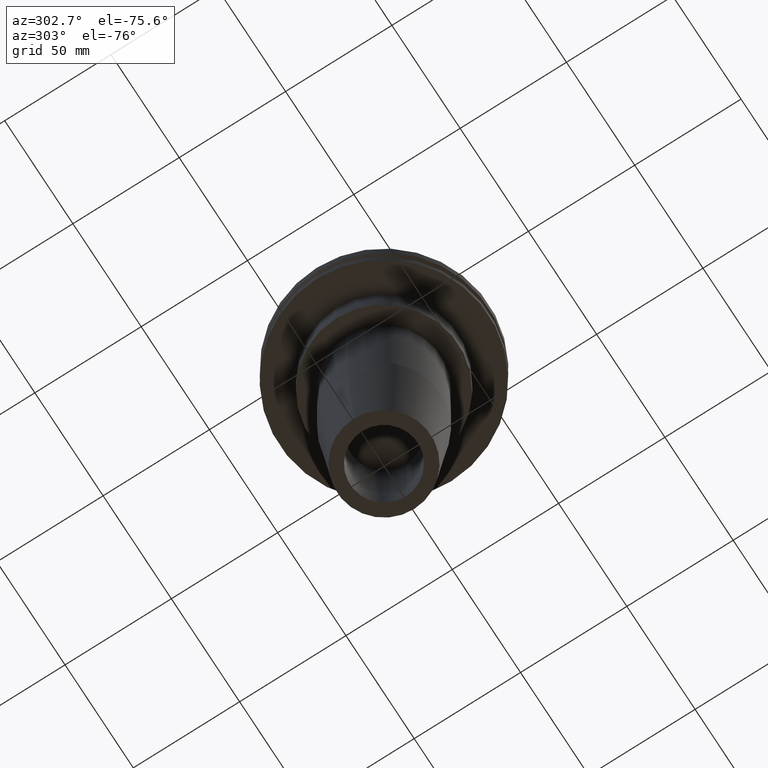
[diagram: clean part render]
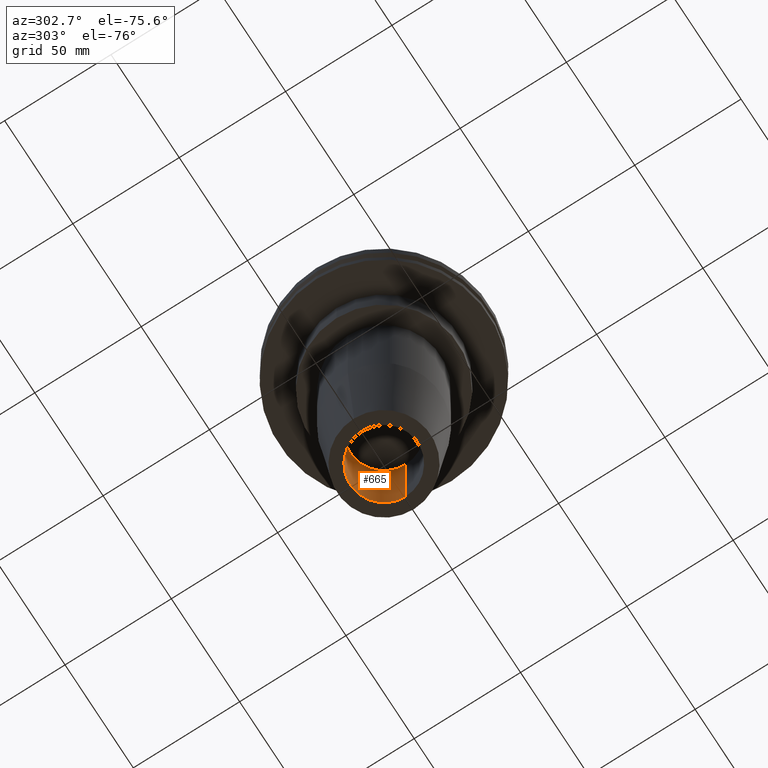
[diagram: same view with one face highlighted and labeled with its STEP entity id]
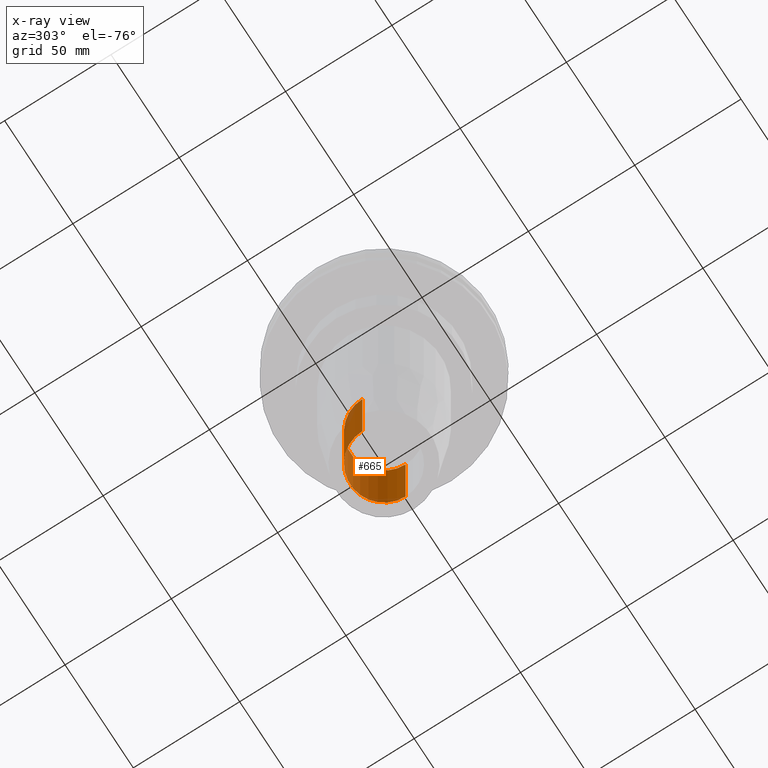
[diagram: x-ray of the same camera — body ghosted, the highlighted face saturated]
A machine part, auxiliary view. The second image highlights one B-rep face of the part: STEP entity #665.
The next image is the same camera in x-ray: the body ghosted, the highlighted face saturated — about 4% of this face is hidden behind the body in this view.
In plain terms, the highlighted cylindrical surface (partial cylindrical patch) has radius 15.875 mm, axis along (-0, -0, 1).
Its self-contained STEP definition (entity closure, byte-faithful):
#10 = ORIENTED_EDGE ( 'NONE', *, *, #365, .F. ) ;
#40 = DIRECTION ( 'NONE',  ( -0.000000000000000000, -0.000000000000000000, 1.000000000000000000 ) ) ;
#46 = VECTOR ( 'NONE', #470, 1000.000000000000000 ) ;
#50 = CYLINDRICAL_SURFACE ( 'NONE', #812, 15.87500000000002132 ) ;
#60 = AXIS2_PLACEMENT_3D ( 'NONE', #660, #275, #542 ) ;
#70 = EDGE_CURVE ( 'NONE', #249, #702, #345, .T. ) ;
#113 = ORIENTED_EDGE ( 'NONE', *, *, #70, .F. ) ;
#129 = CARTESIAN_POINT ( 'NONE',  ( 15.87500000000003197, 0.000000000000000000, -101.4000000000000199 ) ) ;
#199 = AXIS2_PLACEMENT_3D ( 'NONE', #425, #40, #690 ) ;
#202 = CARTESIAN_POINT ( 'NONE',  ( 15.87500000000000711, 0.000000000000000000, -152.4000000000000057 ) ) ;
#215 = EDGE_CURVE ( 'NONE', #326, #702, #739, .T. ) ;
#223 = ORIENTED_EDGE ( 'NONE', *, *, #215, .T. ) ;
#249 = VERTEX_POINT ( 'NONE', #589 ) ;
#266 = CARTESIAN_POINT ( 'NONE',  ( -15.87500000000003197, 1.944126793646427182E-15, -101.4000000000000199 ) ) ;
#275 = DIRECTION ( 'NONE',  ( -0.000000000000000000, -0.000000000000000000, 1.000000000000000000 ) ) ;
#312 = VECTOR ( 'NONE', #843, 1000.000000000000000 ) ;
#325 = CARTESIAN_POINT ( 'NONE',  ( 15.87500000000002132, 0.000000000000000000, 0.000000000000000000 ) ) ;
#326 = VERTEX_POINT ( 'NONE', #129 ) ;
#333 = DIRECTION ( 'NONE',  ( -0.000000000000000000, -0.000000000000000000, 1.000000000000000000 ) ) ;
#345 = LINE ( 'NONE', #601, #46 ) ;
#365 = EDGE_CURVE ( 'NONE', #615, #249, #803, .T. ) ;
#392 = FACE_OUTER_BOUND ( 'NONE', #414, .T. ) ;
#414 = EDGE_LOOP ( 'NONE', ( #113, #10, #829, #223 ) ) ;
#425 = CARTESIAN_POINT ( 'NONE',  ( 0.000000000000000000, 0.000000000000000000, -101.4000000000000199 ) ) ;
#470 = DIRECTION ( 'NONE',  ( -0.000000000000000000, -0.000000000000000000, 1.000000000000000000 ) ) ;
#514 = DIRECTION ( 'NONE',  ( 1.000000000000000000, 0.000000000000000000, 0.000000000000000000 ) ) ;
#542 = DIRECTION ( 'NONE',  ( 1.000000000000000000, 0.000000000000000000, 0.000000000000000000 ) ) ;
#588 = LINE ( 'NONE', #325, #312 ) ;
#589 = CARTESIAN_POINT ( 'NONE',  ( -15.87500000000000711, 1.944126793646425210E-15, -152.4000000000000057 ) ) ;
#601 = CARTESIAN_POINT ( 'NONE',  ( -15.87500000000002132, 1.944126793646425999E-15, 0.000000000000000000 ) ) ;
#615 = VERTEX_POINT ( 'NONE', #202 ) ;
#639 = EDGE_CURVE ( 'NONE', #615, #326, #588, .T. ) ;
#651 = CARTESIAN_POINT ( 'NONE',  ( 0.000000000000000000, 0.000000000000000000, 0.000000000000000000 ) ) ;
#660 = CARTESIAN_POINT ( 'NONE',  ( 0.000000000000000000, 0.000000000000000000, -152.4000000000000057 ) ) ;
#665 = ADVANCED_FACE ( 'NONE', ( #392 ), #50, .F. ) ;
#690 = DIRECTION ( 'NONE',  ( 1.000000000000000000, 0.000000000000000000, 0.000000000000000000 ) ) ;
#702 = VERTEX_POINT ( 'NONE', #266 ) ;
#739 = CIRCLE ( 'NONE', #199, 15.87500000000003197 ) ;
#803 = CIRCLE ( 'NONE', #60, 15.87500000000000711 ) ;
#812 = AXIS2_PLACEMENT_3D ( 'NONE', #651, #333, #514 ) ;
#829 = ORIENTED_EDGE ( 'NONE', *, *, #639, .T. ) ;
#843 = DIRECTION ( 'NONE',  ( -0.000000000000000000, -0.000000000000000000, 1.000000000000000000 ) ) ;